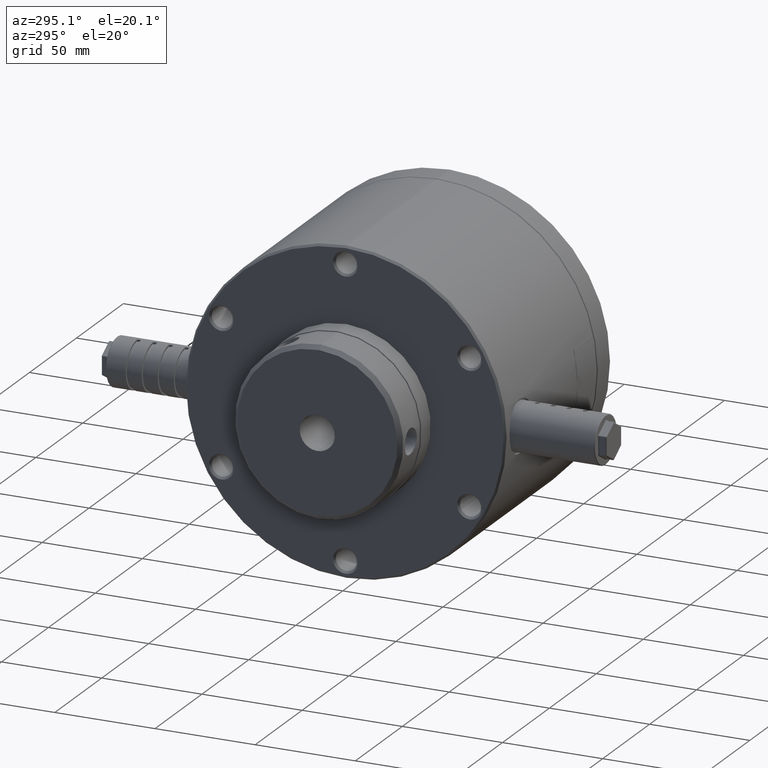
[diagram: clean part render]
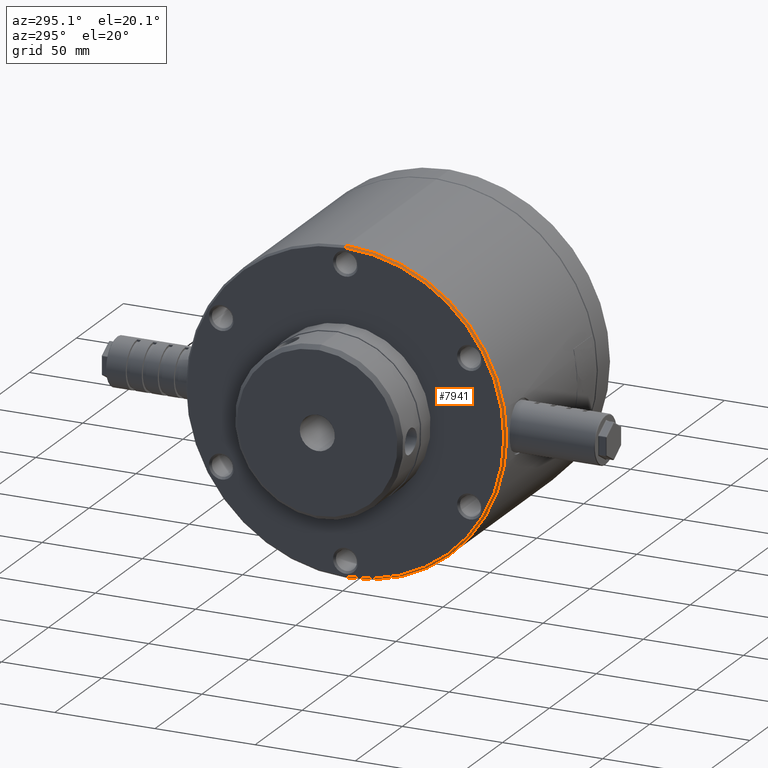
[diagram: same view with one face highlighted and labeled with its STEP entity id]
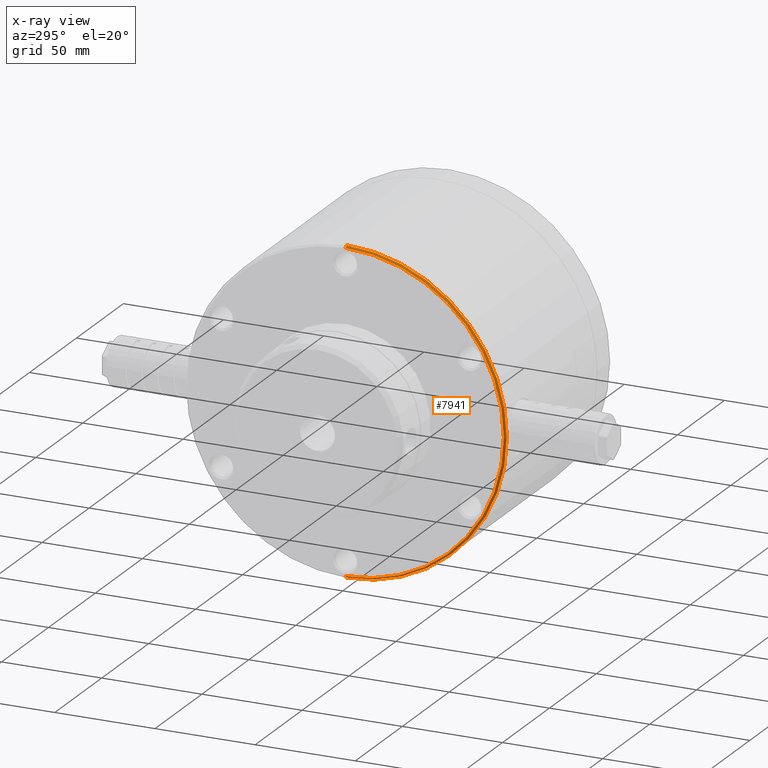
[diagram: x-ray of the same camera — body ghosted, the highlighted face saturated]
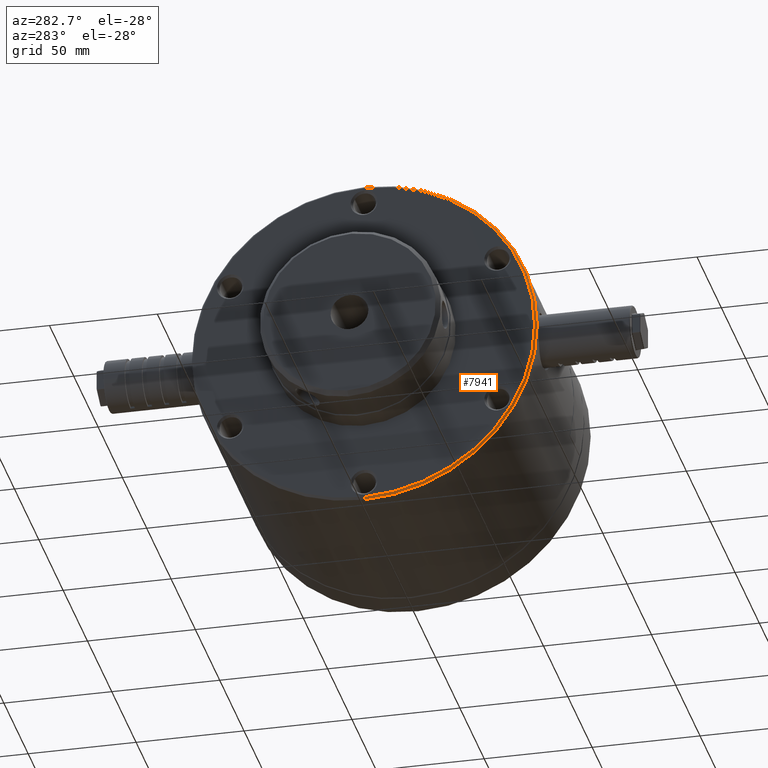
[diagram: same view with one face highlighted and labeled with its STEP entity id]
A machine part, auxiliary view. The second image highlights one B-rep face of the part: STEP entity #7941.
The next image is the same camera in x-ray: the body ghosted, the highlighted face saturated — about 0% of this face is hidden behind the body in this view.
A second angle (auxiliary view) of the same face is appended — the face is thin or edge-on in the first view.
In plain terms, the highlighted conical surface has half-angle 45 deg.
Its self-contained STEP definition (entity closure, byte-faithful):
#170 = EDGE_LOOP ( 'NONE', ( #10129, #28091, #29942, #20449 ) ) ;
#2462 = DIRECTION ( 'NONE',  ( 1.000000000000000000, 0.0000000000000000000, 0.0000000000000000000 ) ) ;
#2534 = CARTESIAN_POINT ( 'NONE',  ( -97.00000000000000000, 0.0000000000000000000, 0.0000000000000000000 ) ) ;
#2703 = CARTESIAN_POINT ( 'NONE',  ( -96.00000000000000000, 0.0000000000000000000, -80.00000000000000000 ) ) ;
#2946 = CARTESIAN_POINT ( 'NONE',  ( -97.00000000000000000, 0.0000000000000000000, -79.00000000000000000 ) ) ;
#2970 = DIRECTION ( 'NONE',  ( 1.000000000000000000, 0.0000000000000000000, 0.0000000000000000000 ) ) ;
#4582 = LINE ( 'NONE', #22893, #29554 ) ;
#4812 = DIRECTION ( 'NONE',  ( 0.0000000000000000000, 0.0000000000000000000, -1.000000000000000000 ) ) ;
#5351 = VECTOR ( 'NONE', #18119, 1000.000000000000100 ) ;
#6109 = EDGE_CURVE ( 'NONE', #30992, #19127, #4582, .T. ) ;
#7941 = ADVANCED_FACE ( 'NONE', ( #16101 ), #28944, .T. ) ;
#9198 = CARTESIAN_POINT ( 'NONE',  ( -96.00000000000000000, 9.797174393178826100E-015, 80.00000000000000000 ) ) ;
#10129 = ORIENTED_EDGE ( 'NONE', *, *, #6109, .F. ) ;
#10342 = AXIS2_PLACEMENT_3D ( 'NONE', #2534, #26774, #19312 ) ;
#11607 = AXIS2_PLACEMENT_3D ( 'NONE', #20250, #2970, #29730 ) ;
#12503 = CARTESIAN_POINT ( 'NONE',  ( -97.00000000000000000, 9.735942053221458500E-015, 79.00000000000000000 ) ) ;
#15892 = AXIS2_PLACEMENT_3D ( 'NONE', #21330, #2462, #4812 ) ;
#16031 = VERTEX_POINT ( 'NONE', #2946 ) ;
#16101 = FACE_OUTER_BOUND ( 'NONE', #170, .T. ) ;
#16344 = VERTEX_POINT ( 'NONE', #2703 ) ;
#18119 = DIRECTION ( 'NONE',  ( 0.7071067811865474600, 0.0000000000000000000, -0.7071067811865474600 ) ) ;
#19127 = VERTEX_POINT ( 'NONE', #9198 ) ;
#19312 = DIRECTION ( 'NONE',  ( 0.0000000000000000000, 0.0000000000000000000, -1.000000000000000000 ) ) ;
#20170 = EDGE_CURVE ( 'NONE', #16031, #30992, #29278, .T. ) ;
#20250 = CARTESIAN_POINT ( 'NONE',  ( -96.00000000000000000, 0.0000000000000000000, 0.0000000000000000000 ) ) ;
#20449 = ORIENTED_EDGE ( 'NONE', *, *, #22157, .F. ) ;
#21330 = CARTESIAN_POINT ( 'NONE',  ( -96.00000000000000000, 0.0000000000000000000, 0.0000000000000000000 ) ) ;
#22157 = EDGE_CURVE ( 'NONE', #19127, #16344, #26548, .T. ) ;
#22377 = LINE ( 'NONE', #22872, #5351 ) ;
#22872 = CARTESIAN_POINT ( 'NONE',  ( -96.00000000000000000, 0.0000000000000000000, -80.00000000000000000 ) ) ;
#22893 = CARTESIAN_POINT ( 'NONE',  ( -96.00000000000000000, 9.797174393178826100E-015, 80.00000000000000000 ) ) ;
#25288 = DIRECTION ( 'NONE',  ( 0.7071067811865474600, 8.659560562354931600E-017, 0.7071067811865474600 ) ) ;
#26548 = CIRCLE ( 'NONE', #11607, 80.00000000000000000 ) ;
#26774 = DIRECTION ( 'NONE',  ( -1.000000000000000000, -0.0000000000000000000, -0.0000000000000000000 ) ) ;
#28091 = ORIENTED_EDGE ( 'NONE', *, *, #20170, .F. ) ;
#28944 = CONICAL_SURFACE ( 'NONE', #15892, 80.00000000000000000, 0.7853981633974482800 ) ;
#29278 = CIRCLE ( 'NONE', #10342, 79.00000000000000000 ) ;
#29554 = VECTOR ( 'NONE', #25288, 1000.000000000000100 ) ;
#29730 = DIRECTION ( 'NONE',  ( 0.0000000000000000000, 0.0000000000000000000, -1.000000000000000000 ) ) ;
#29825 = EDGE_CURVE ( 'NONE', #16031, #16344, #22377, .T. ) ;
#29942 = ORIENTED_EDGE ( 'NONE', *, *, #29825, .T. ) ;
#30992 = VERTEX_POINT ( 'NONE', #12503 ) ;